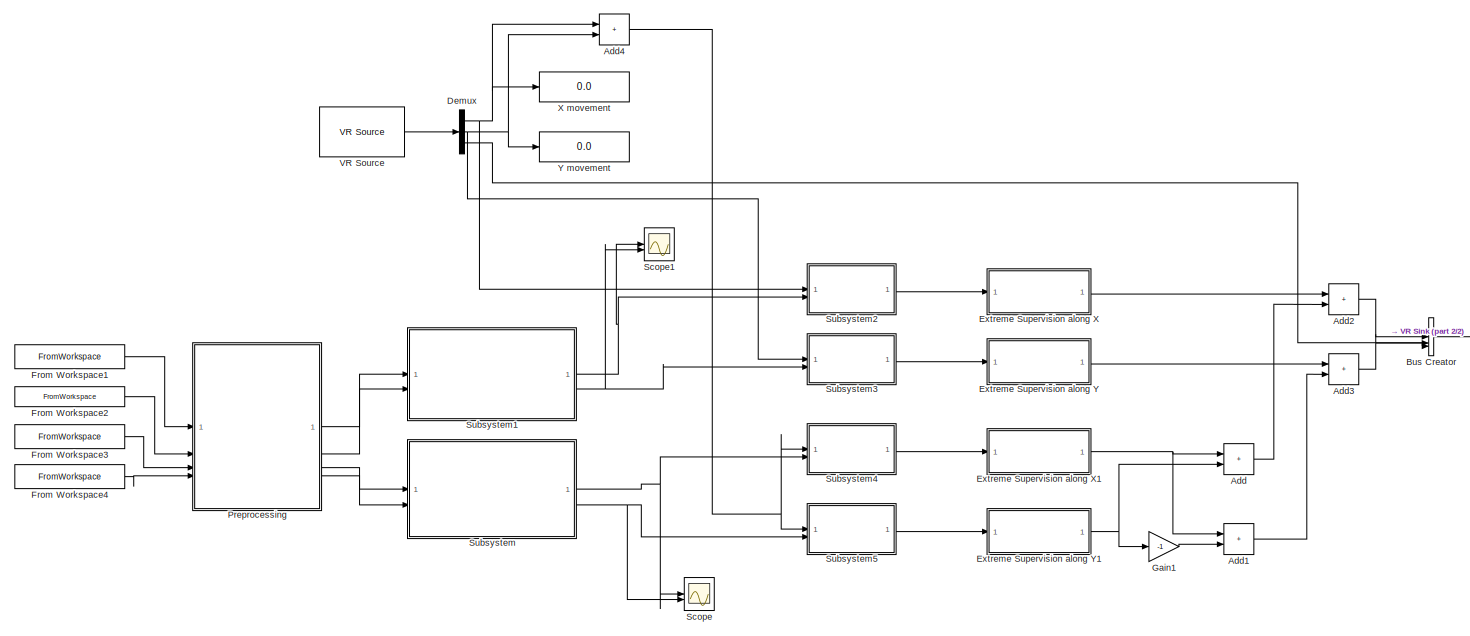
[diagram: root canvas - part 1/2, most of the canvas]
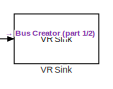
[diagram: root canvas - part 2/2, middle right region]
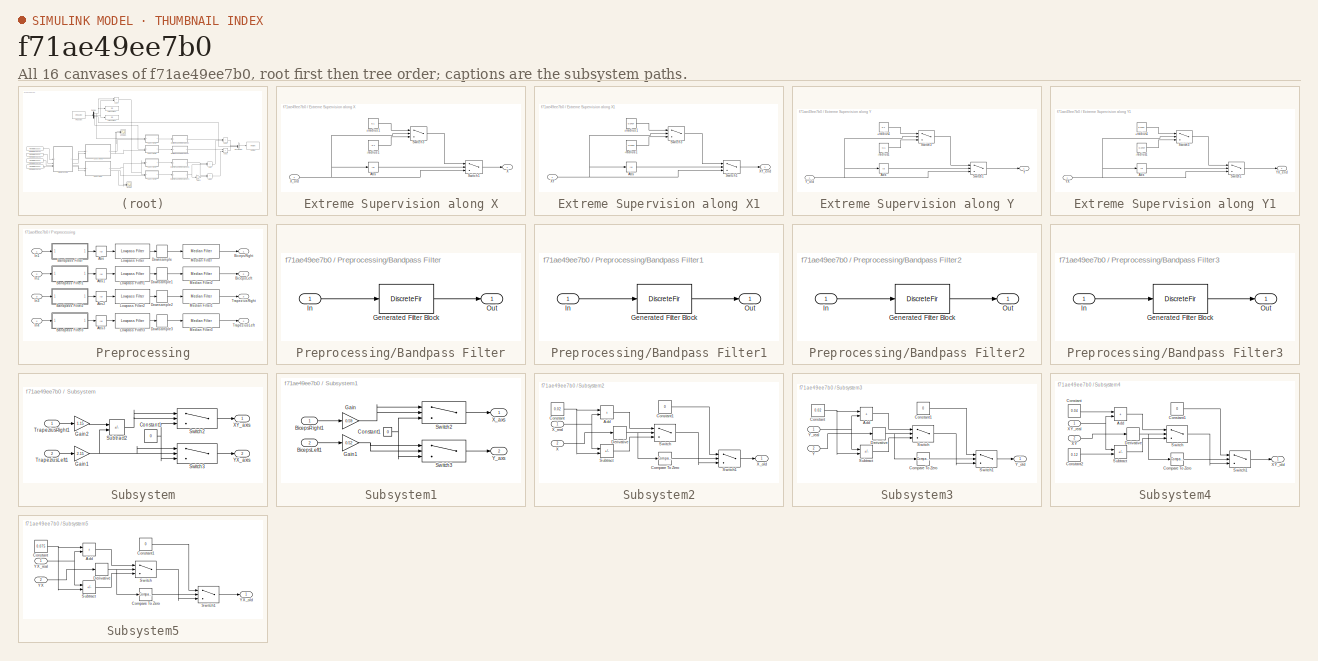
[diagram: thumbnail index - all 16 canvases of the model, root first then tree order]
MODEL slx_f71ae49ee7b0
KIND model
CONFIG AbsTol = auto
CONFIG EnableMultiTasking = off
CONFIG FixedStep = auto
CONFIG MaxStep = auto
CONFIG MinStep = auto
CONFIG RelTol = 1e-3
CONFIG SampleTimeConstraint = Unconstrained
CONFIG SolverName = VariableStepAuto
CONFIG StartTime = 0.0
CONFIG StopTime = 30.0
BLOCK [Sum] Add
  IconShape = rectangular
BLOCK [Sum] Add1
  IconShape = rectangular
BLOCK [Sum] Add2
  IconShape = rectangular
BLOCK [Sum] Add3
  IconShape = rectangular
BLOCK [Sum] Add4
  IconShape = rectangular
BLOCK [BusCreator] Bus Creator
  DisplayOption = bar
  InheritFromInputs = on
  Inputs = 3
BLOCK [Demux] Demux
  Outputs = 3
BLOCK [SubSystem] Extreme Supervision along X
BLOCK [Constant] Extreme Supervision along X/+radius1
  Value = 0.1
BLOCK [Constant] Extreme Supervision along X/-radius1
  Value = -0.1
BLOCK [Abs] Extreme Supervision along X/Abs
  SaturateOnIntegerOverflow = off
BLOCK [Switch] Extreme Supervision along X/Switch1
  Criteria = u2 > Threshold
  InputSameDT = off
  SaturateOnIntegerOverflow = off
  Threshold = 0.1
BLOCK [Switch] Extreme Supervision along X/Switch3
  Criteria = u2 > Threshold
  InputSameDT = off
  SaturateOnIntegerOverflow = off
BLOCK [Outport] Extreme Supervision along X/X
BLOCK [Inport] Extreme Supervision along X/X_old
BLOCK [SubSystem] Extreme Supervision along X1
BLOCK [Constant] Extreme Supervision along X1/+radius1
  Value = 0.0707
BLOCK [Constant] Extreme Supervision along X1/-radius1
  Value = -0.0707
BLOCK [Abs] Extreme Supervision along X1/Abs
  SaturateOnIntegerOverflow = off
BLOCK [Switch] Extreme Supervision along X1/Switch1
  Criteria = u2 > Threshold
  InputSameDT = off
  SaturateOnIntegerOverflow = off
  Threshold = 0.0707
BLOCK [Switch] Extreme Supervision along X1/Switch3
  Criteria = u2 > Threshold
  InputSameDT = off
  SaturateOnIntegerOverflow = off
BLOCK [Inport] Extreme Supervision along X1/XY
BLOCK [Outport] Extreme Supervision along X1/XY_end
BLOCK [SubSystem] Extreme Supervision along Y
BLOCK [Constant] Extreme Supervision along Y/+radius1
  Value = 0.1
BLOCK [Constant] Extreme Supervision along Y/-radius1
  Value = -0.1
BLOCK [Abs] Extreme Supervision along Y/Abs
  SaturateOnIntegerOverflow = off
BLOCK [Switch] Extreme Supervision along Y/Switch1
  Criteria = u2 > Threshold
  InputSameDT = off
  SaturateOnIntegerOverflow = off
  Threshold = 0.1
BLOCK [Switch] Extreme Supervision along Y/Switch3
  Criteria = u2 > Threshold
  InputSameDT = off
  SaturateOnIntegerOverflow = off
BLOCK [Outport] Extreme Supervision along Y/Y
BLOCK [Inport] Extreme Supervision along Y/Y_old
BLOCK [SubSystem] Extreme Supervision along Y1
BLOCK [Constant] Extreme Supervision along Y1/+radius1
  Value = 0.0707
BLOCK [Constant] Extreme Supervision along Y1/-radius1
  Value = -0.0707
BLOCK [Abs] Extreme Supervision along Y1/Abs
  SaturateOnIntegerOverflow = off
BLOCK [Switch] Extreme Supervision along Y1/Switch1
  Criteria = u2 > Threshold
  InputSameDT = off
  SaturateOnIntegerOverflow = off
  Threshold = 0.0707
BLOCK [Switch] Extreme Supervision along Y1/Switch3
  Criteria = u2 > Threshold
  InputSameDT = off
  SaturateOnIntegerOverflow = off
BLOCK [Inport] Extreme Supervision along Y1/YX
BLOCK [Outport] Extreme Supervision along Y1/YX_end
BLOCK [FromWorkspace] From Workspace1
  OutDataTypeStr = double
  SampleTime = 0.001
  VariableName = [ES2_emg.time, ES2_emg.signals(:,1)]
BLOCK [FromWorkspace] From Workspace2
  OutDataTypeStr = double
  SampleTime = 0.001
  VariableName = [ES2_emg.time, ES2_emg.signals(:,2)]
BLOCK [FromWorkspace] From Workspace3
  OutDataTypeStr = double
  SampleTime = 0.001
  VariableName = [ES2_emg.time, ES2_emg.signals(:,3)]
BLOCK [FromWorkspace] From Workspace4
  OutDataTypeStr = double
  SampleTime = 0.001
  VariableName = [ES2_emg.time, ES2_emg.signals(:,4)]
BLOCK [Gain] Gain1
  Gain = -1
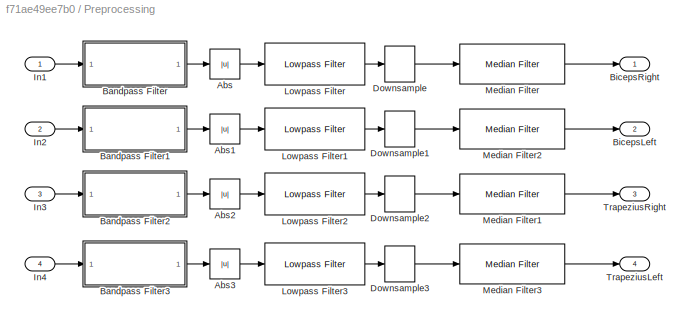
BLOCK [SubSystem] Preprocessing
BLOCK [Abs] Preprocessing/Abs
  SaturateOnIntegerOverflow = off
BLOCK [Abs] Preprocessing/Abs1
  SaturateOnIntegerOverflow = off
BLOCK [Abs] Preprocessing/Abs2
  SaturateOnIntegerOverflow = off
BLOCK [Abs] Preprocessing/Abs3
  SaturateOnIntegerOverflow = off
BLOCK [SubSystem] Preprocessing/Bandpass Filter
  CopyFcn = fdesignblkfcn(gcbh, {'CopyFcn'});
  DialogController = fdesignblkfcn
  InitFcn = fdesignblkfcn(gcbh, {'InitFcn'});
  UserDataPersistent = on
BLOCK [DiscreteFir] Preprocessing/Bandpass Filter/Generated Filter Block
  Coefficients = [8.09984662039171167e-19 6.39138873735445952e-05 -0.000529985360713195602 0.000163049509978640958 -0.00106873656065133355 0.000138454107623771778 -0.00150740219393306354 -0.000146171169312381939 -0.00164491285071874664 -0.000803831165663842096 -0.00127002939103642264 -0.00179475969145176406 -0.000313202715390952153 -0.00280047053638836797 0.00102378750565708626 -0.00320898606072516192 0.0022684712...<+1946ch>  <repeated x4 — deduplicated; at blocks: Generated Filter Block>
  InputPortMap = u0
  InputProcessing = Columns as channels (frame based)
  OutputPortMap = o0
  Tag = BlockMethodSubSystem
BLOCK [Inport] Preprocessing/Bandpass Filter/In
BLOCK [Outport] Preprocessing/Bandpass Filter/Out
  VectorParamsAs1DForOutWhenUnconnected = off
BLOCK [SubSystem] Preprocessing/Bandpass Filter1
  CopyFcn = fdesignblkfcn(gcbh, {'CopyFcn'});
  DialogController = fdesignblkfcn
  InitFcn = fdesignblkfcn(gcbh, {'InitFcn'});
  UserDataPersistent = on
BLOCK [DiscreteFir] Preprocessing/Bandpass Filter1/Generated Filter Block
  InputPortMap = u0
  InputProcessing = Columns as channels (frame based)
  OutputPortMap = o0
  Tag = BlockMethodSubSystem
BLOCK [Inport] Preprocessing/Bandpass Filter1/In
BLOCK [Outport] Preprocessing/Bandpass Filter1/Out
  VectorParamsAs1DForOutWhenUnconnected = off
BLOCK [SubSystem] Preprocessing/Bandpass Filter2
  CopyFcn = fdesignblkfcn(gcbh, {'CopyFcn'});
  DialogController = fdesignblkfcn
  InitFcn = fdesignblkfcn(gcbh, {'InitFcn'});
  UserDataPersistent = on
BLOCK [DiscreteFir] Preprocessing/Bandpass Filter2/Generated Filter Block
  InputPortMap = u0
  InputProcessing = Columns as channels (frame based)
  OutputPortMap = o0
  Tag = BlockMethodSubSystem
BLOCK [Inport] Preprocessing/Bandpass Filter2/In
BLOCK [Outport] Preprocessing/Bandpass Filter2/Out
  VectorParamsAs1DForOutWhenUnconnected = off
BLOCK [SubSystem] Preprocessing/Bandpass Filter3
  CopyFcn = fdesignblkfcn(gcbh, {'CopyFcn'});
  DialogController = fdesignblkfcn
  InitFcn = fdesignblkfcn(gcbh, {'InitFcn'});
  UserDataPersistent = on
BLOCK [DiscreteFir] Preprocessing/Bandpass Filter3/Generated Filter Block
  InputPortMap = u0
  InputProcessing = Columns as channels (frame based)
  OutputPortMap = o0
  Tag = BlockMethodSubSystem
BLOCK [Inport] Preprocessing/Bandpass Filter3/In
BLOCK [Outport] Preprocessing/Bandpass Filter3/Out
  VectorParamsAs1DForOutWhenUnconnected = off
BLOCK [Outport] Preprocessing/BicepsLeft
  Port = 2
BLOCK [Outport] Preprocessing/BicepsRight
BLOCK [DownSample] Preprocessing/Downsample
  InputProcessing = Elements as channels (sample based)
  N = 4
  RateOptions = Allow multirate processing
BLOCK [DownSample] Preprocessing/Downsample1
  InputProcessing = Elements as channels (sample based)
  N = 4
  RateOptions = Allow multirate processing
BLOCK [DownSample] Preprocessing/Downsample2
  InputProcessing = Elements as channels (sample based)
  N = 4
  RateOptions = Allow multirate processing
BLOCK [DownSample] Preprocessing/Downsample3
  InputProcessing = Elements as channels (sample based)
  N = 4
  RateOptions = Allow multirate processing
BLOCK [Inport] Preprocessing/In1
BLOCK [Inport] Preprocessing/In2
  Port = 2
BLOCK [Inport] Preprocessing/In3
  Port = 3
BLOCK [Inport] Preprocessing/In4
  Port = 4
BLOCK [Reference] Preprocessing/Lowpass Filter  REF=dspfdesign/Lowpass Filter
  SourceBlock = dspfdesign/Lowpass Filter
  SourceType = dsp.simulink.LowpassFilter
BLOCK [Reference] Preprocessing/Lowpass Filter1  REF=dspfdesign/Lowpass Filter
  SourceBlock = dspfdesign/Lowpass Filter
  SourceType = dsp.simulink.LowpassFilter
BLOCK [Reference] Preprocessing/Lowpass Filter2  REF=dspfdesign/Lowpass Filter
  SourceBlock = dspfdesign/Lowpass Filter
  SourceType = dsp.simulink.LowpassFilter
BLOCK [Reference] Preprocessing/Lowpass Filter3  REF=dspfdesign/Lowpass Filter
  SourceBlock = dspfdesign/Lowpass Filter
  SourceType = dsp.simulink.LowpassFilter
BLOCK [Reference] Preprocessing/Median Filter  REF=dspstat3/Median
Filter
  LibrarySourceBlock = dspfdesign/Median\nFilter
  SourceBlock = dspstat3/Median\nFilter
  SourceType = dsp.simulink.MedianFilter
BLOCK [Reference] Preprocessing/Median Filter1  REF=dspstat3/Median
Filter
  LibrarySourceBlock = dspfdesign/Median\nFilter
  SourceBlock = dspstat3/Median\nFilter
  SourceType = dsp.simulink.MedianFilter
BLOCK [Reference] Preprocessing/Median Filter2  REF=dspstat3/Median
Filter
  LibrarySourceBlock = dspfdesign/Median\nFilter
  SourceBlock = dspstat3/Median\nFilter
  SourceType = dsp.simulink.MedianFilter
BLOCK [Reference] Preprocessing/Median Filter3  REF=dspstat3/Median
Filter
  LibrarySourceBlock = dspfdesign/Median\nFilter
  SourceBlock = dspstat3/Median\nFilter
  SourceType = dsp.simulink.MedianFilter
BLOCK [Outport] Preprocessing/TrapeziusLeft
  Port = 4
BLOCK [Outport] Preprocessing/TrapeziusRight
  Port = 3
BLOCK [Scope] Scope
  Floating = off
  NumInputPorts = 2
  ScopeSpecificationString = Simulink.scopes.TimeScopeBlockCfg('CurrentConfiguration', extmgr.ConfigurationSet(extmgr.Configuration('Core','General UI',true),extmgr.Configuration('Core','Source UI',true),extmgr.Configuration('Sources','WiredSimulink',true),extmgr.Configuration('Visuals','Time Domain',true,'SerializedDisplays',{struct('MinYLimReal','-0.02128','MaxYLimReal','0.19155','YLabelReal','','MinYLimMag','0.00000','MaxY...<+1647ch>
BLOCK [Scope] Scope1
  Floating = off
  NumInputPorts = 2
  ScopeSpecificationString = Simulink.scopes.TimeScopeBlockCfg('CurrentConfiguration', extmgr.ConfigurationSet(extmgr.Configuration('Core','General UI',true),extmgr.Configuration('Core','Source UI',true),extmgr.Configuration('Sources','WiredSimulink',true,'DataLoggingVariableName','ScopeData1'),extmgr.Configuration('Visuals','Time Domain',true,'SerializedDisplays',{struct('MinYLimReal','-0.01294','MaxYLimReal','0.11648','YLab...<+1415ch>
BLOCK [SubSystem] Subsystem
BLOCK [Constant] Subsystem/Constant1
  Value = 0
BLOCK [Gain] Subsystem/Gain1
  Gain = 2.15
BLOCK [Gain] Subsystem/Gain2
  Gain = 1.15
BLOCK [Sum] Subsystem/Subtract2
  IconShape = rectangular
  Inputs = +-
BLOCK [Switch] Subsystem/Switch2
  Criteria = u2 > Threshold
  InputSameDT = off
  SaturateOnIntegerOverflow = off
  Threshold = 0.05
BLOCK [Switch] Subsystem/Switch3
  Criteria = u2 > Threshold
  InputSameDT = off
  SaturateOnIntegerOverflow = off
  Threshold = 0.037
BLOCK [Inport] Subsystem/TrapeziusLeft1
  Port = 2
BLOCK [Inport] Subsystem/TrapeziusRight1
BLOCK [Outport] Subsystem/XY_axis
BLOCK [Outport] Subsystem/YX_axis
  Port = 2
BLOCK [SubSystem] Subsystem1
BLOCK [Inport] Subsystem1/BicepsLeft1
  Port = 2
BLOCK [Inport] Subsystem1/BicepsRight1
BLOCK [Constant] Subsystem1/Constant1
  Value = 0
BLOCK [Gain] Subsystem1/Gain
  Gain = 0.59
BLOCK [Gain] Subsystem1/Gain1
  Gain = 0.52
BLOCK [Switch] Subsystem1/Switch2
  Criteria = u2 > Threshold
  InputSameDT = off
  SaturateOnIntegerOverflow = off
  Threshold = 0.01
BLOCK [Switch] Subsystem1/Switch3
  Criteria = u2 > Threshold
  InputSameDT = off
  SaturateOnIntegerOverflow = off
  Threshold = 0.01
BLOCK [Outport] Subsystem1/X_axs
BLOCK [Outport] Subsystem1/Y_axs
  Port = 2
BLOCK [SubSystem] Subsystem2
BLOCK [Sum] Subsystem2/Add
  IconShape = rectangular
BLOCK [Reference] Subsystem2/Compare To Zero  REF=simulink/Logic and Bit
Operations/Compare
To Zero
  SourceBlock = simulink/Logic and Bit\nOperations/Compare\nTo Zero
  SourceType = Compare To Zero
BLOCK [Constant] Subsystem2/Constant
  Value = 0.02
BLOCK [Constant] Subsystem2/Constant1
  Value = 0
BLOCK [Derivative] Subsystem2/Derivative
BLOCK [Sum] Subsystem2/Subtract
  IconShape = rectangular
  Inputs = +-
BLOCK [Switch] Subsystem2/Switch
  Criteria = u2 > Threshold
  InputSameDT = off
  SaturateOnIntegerOverflow = off
BLOCK [Switch] Subsystem2/Switch1
  InputSameDT = off
  SaturateOnIntegerOverflow = off
  Threshold = 1
BLOCK [Inport] Subsystem2/X
  Port = 2
BLOCK [Outport] Subsystem2/X_old
BLOCK [Inport] Subsystem2/X_real
BLOCK [SubSystem] Subsystem3
BLOCK [Sum] Subsystem3/Add
  IconShape = rectangular
BLOCK [Reference] Subsystem3/Compare To Zero  REF=simulink/Logic and Bit
Operations/Compare
To Zero
  SourceBlock = simulink/Logic and Bit\nOperations/Compare\nTo Zero
  SourceType = Compare To Zero
BLOCK [Constant] Subsystem3/Constant
  Value = 0.02
BLOCK [Constant] Subsystem3/Constant1
  Value = 0
BLOCK [Derivative] Subsystem3/Derivative
BLOCK [Sum] Subsystem3/Subtract
  IconShape = rectangular
  Inputs = +-
BLOCK [Switch] Subsystem3/Switch
  Criteria = u2 > Threshold
  InputSameDT = off
  SaturateOnIntegerOverflow = off
BLOCK [Switch] Subsystem3/Switch1
  InputSameDT = off
  SaturateOnIntegerOverflow = off
  Threshold = 1
BLOCK [Inport] Subsystem3/Y
  Port = 2
BLOCK [Outport] Subsystem3/Y_old
BLOCK [Inport] Subsystem3/Y_real
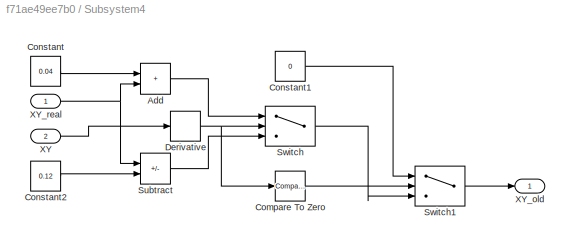
BLOCK [SubSystem] Subsystem4
BLOCK [Sum] Subsystem4/Add
  IconShape = rectangular
BLOCK [Reference] Subsystem4/Compare To Zero  REF=simulink/Logic and Bit
Operations/Compare
To Zero
  SourceBlock = simulink/Logic and Bit\nOperations/Compare\nTo Zero
  SourceType = Compare To Zero
BLOCK [Constant] Subsystem4/Constant
  Value = 0.04
BLOCK [Constant] Subsystem4/Constant1
  Value = 0
BLOCK [Constant] Subsystem4/Constant2
  Value = 0.12
BLOCK [Derivative] Subsystem4/Derivative
BLOCK [Sum] Subsystem4/Subtract
  IconShape = rectangular
  Inputs = +-
BLOCK [Switch] Subsystem4/Switch
  Criteria = u2 > Threshold
  InputSameDT = off
  SaturateOnIntegerOverflow = off
BLOCK [Switch] Subsystem4/Switch1
  InputSameDT = off
  SaturateOnIntegerOverflow = off
  Threshold = 1
BLOCK [Inport] Subsystem4/XY
  Port = 2
BLOCK [Outport] Subsystem4/XY_old
BLOCK [Inport] Subsystem4/XY_real
BLOCK [SubSystem] Subsystem5
BLOCK [Sum] Subsystem5/Add
  IconShape = rectangular
BLOCK [Reference] Subsystem5/Compare To Zero  REF=simulink/Logic and Bit
Operations/Compare
To Zero
  SourceBlock = simulink/Logic and Bit\nOperations/Compare\nTo Zero
  SourceType = Compare To Zero
BLOCK [Constant] Subsystem5/Constant
  Value = 0.075
BLOCK [Constant] Subsystem5/Constant1
  Value = 0
BLOCK [Derivative] Subsystem5/Derivative
BLOCK [Sum] Subsystem5/Subtract
  IconShape = rectangular
  Inputs = +-
BLOCK [Switch] Subsystem5/Switch
  Criteria = u2 > Threshold
  InputSameDT = off
  SaturateOnIntegerOverflow = off
BLOCK [Switch] Subsystem5/Switch1
  InputSameDT = off
  SaturateOnIntegerOverflow = off
  Threshold = 1
BLOCK [Inport] Subsystem5/YX
  Port = 2
BLOCK [Outport] Subsystem5/YX_old
BLOCK [Inport] Subsystem5/YX_real
BLOCK [Reference] VR Sink  REF=vrlib/VR Sink
  InstantiateOnLoad = on
  SourceBlock = vrlib/VR Sink
  SourceType = Virtual Reality Sink
BLOCK [Reference] VR Source  REF=vrlib/VR Source
  InstantiateOnLoad = on
  SourceBlock = vrlib/VR Source
  SourceType = Virtual Reality Source
BLOCK [Display] X movement
  Decimation = 1
BLOCK [Display] Y movement
  Decimation = 1
LINE Add1:1 -> Add3:2
LINE Add2:1 -> Bus Creator:1
LINE Add3:1 -> Bus Creator:2
NET Add4:1 -> Subsystem4:1, Subsystem5:1
LINE Add:1 -> Add2:2
LINE Bus Creator:1 -> VR Sink:1
NET Demux:1 -> Add4:1, Subsystem2:1, X movement:1
NET Demux:2 -> Add4:2, Subsystem3:1, Y movement:1
LINE Demux:3 -> Bus Creator:3
LINE Extreme Supervision along X/+radius1:1 -> Extreme Supervision along X/Switch3:1
LINE Extreme Supervision along X/-radius1:1 -> Extreme Supervision along X/Switch3:3
LINE Extreme Supervision along X/Abs:1 -> Extreme Supervision along X/Switch1:2
LINE Extreme Supervision along X/Switch1:1 -> Extreme Supervision along X/X:1
LINE Extreme Supervision along X/Switch3:1 -> Extreme Supervision along X/Switch1:1
NET Extreme Supervision along X/X_old:1 -> Extreme Supervision along X/Abs:1, Extreme Supervision along X/Switch1:3, Extreme Supervision along X/Switch3:2
LINE Extreme Supervision along X1/+radius1:1 -> Extreme Supervision along X1/Switch3:1
LINE Extreme Supervision along X1/-radius1:1 -> Extreme Supervision along X1/Switch3:3
LINE Extreme Supervision along X1/Abs:1 -> Extreme Supervision along X1/Switch1:2
LINE Extreme Supervision along X1/Switch1:1 -> Extreme Supervision along X1/XY_end:1
LINE Extreme Supervision along X1/Switch3:1 -> Extreme Supervision along X1/Switch1:1
NET Extreme Supervision along X1/XY:1 -> Extreme Supervision along X1/Abs:1, Extreme Supervision along X1/Switch1:3, Extreme Supervision along X1/Switch3:2
NET Extreme Supervision along X1:1 -> Add1:1, Add:1
LINE Extreme Supervision along X:1 -> Add2:1
LINE Extreme Supervision along Y/+radius1:1 -> Extreme Supervision along Y/Switch3:1
LINE Extreme Supervision along Y/-radius1:1 -> Extreme Supervision along Y/Switch3:3
LINE Extreme Supervision along Y/Abs:1 -> Extreme Supervision along Y/Switch1:2
LINE Extreme Supervision along Y/Switch1:1 -> Extreme Supervision along Y/Y:1
LINE Extreme Supervision along Y/Switch3:1 -> Extreme Supervision along Y/Switch1:1
NET Extreme Supervision along Y/Y_old:1 -> Extreme Supervision along Y/Abs:1, Extreme Supervision along Y/Switch1:3, Extreme Supervision along Y/Switch3:2
LINE Extreme Supervision along Y1/+radius1:1 -> Extreme Supervision along Y1/Switch3:1
LINE Extreme Supervision along Y1/-radius1:1 -> Extreme Supervision along Y1/Switch3:3
LINE Extreme Supervision along Y1/Abs:1 -> Extreme Supervision along Y1/Switch1:2
LINE Extreme Supervision along Y1/Switch1:1 -> Extreme Supervision along Y1/YX_end:1
LINE Extreme Supervision along Y1/Switch3:1 -> Extreme Supervision along Y1/Switch1:1
NET Extreme Supervision along Y1/YX:1 -> Extreme Supervision along Y1/Abs:1, Extreme Supervision along Y1/Switch1:3, Extreme Supervision along Y1/Switch3:2
NET Extreme Supervision along Y1:1 -> Add:2, Gain1:1
LINE Extreme Supervision along Y:1 -> Add3:1
LINE From Workspace1:1 -> Preprocessing:1
LINE From Workspace2:1 -> Preprocessing:2
LINE From Workspace3:1 -> Preprocessing:3
LINE From Workspace4:1 -> Preprocessing:4
LINE Gain1:1 -> Add1:2
LINE Preprocessing/Abs1:1 -> Preprocessing/Lowpass Filter1:1
LINE Preprocessing/Abs2:1 -> Preprocessing/Lowpass Filter2:1
LINE Preprocessing/Abs3:1 -> Preprocessing/Lowpass Filter3:1
LINE Preprocessing/Abs:1 -> Preprocessing/Lowpass Filter:1
LINE Preprocessing/Bandpass Filter1:1 -> Preprocessing/Abs1:1
LINE Preprocessing/Bandpass Filter2:1 -> Preprocessing/Abs2:1
LINE Preprocessing/Bandpass Filter3:1 -> Preprocessing/Abs3:1
LINE Preprocessing/Bandpass Filter:1 -> Preprocessing/Abs:1
LINE Preprocessing/Downsample1:1 -> Preprocessing/Median Filter2:1
LINE Preprocessing/Downsample2:1 -> Preprocessing/Median Filter1:1
LINE Preprocessing/Downsample3:1 -> Preprocessing/Median Filter3:1
LINE Preprocessing/Downsample:1 -> Preprocessing/Median Filter:1
LINE Preprocessing/In1:1 -> Preprocessing/Bandpass Filter:1
LINE Preprocessing/In2:1 -> Preprocessing/Bandpass Filter1:1
LINE Preprocessing/In3:1 -> Preprocessing/Bandpass Filter2:1
LINE Preprocessing/In4:1 -> Preprocessing/Bandpass Filter3:1
LINE Preprocessing/Lowpass Filter1:1 -> Preprocessing/Downsample1:1
LINE Preprocessing/Lowpass Filter2:1 -> Preprocessing/Downsample2:1
LINE Preprocessing/Lowpass Filter3:1 -> Preprocessing/Downsample3:1
LINE Preprocessing/Lowpass Filter:1 -> Preprocessing/Downsample:1
LINE Preprocessing/Median Filter1:1 -> Preprocessing/TrapeziusRight:1
LINE Preprocessing/Median Filter2:1 -> Preprocessing/BicepsLeft:1
LINE Preprocessing/Median Filter3:1 -> Preprocessing/TrapeziusLeft:1
LINE Preprocessing/Median Filter:1 -> Preprocessing/BicepsRight:1
LINE Preprocessing:1 -> Subsystem1:1
LINE Preprocessing:2 -> Subsystem1:2
LINE Preprocessing:3 -> Subsystem:1
LINE Preprocessing:4 -> Subsystem:2
NET Subsystem/Constant1:1 -> Subsystem/Switch2:3, Subsystem/Switch3:3
NET Subsystem/Gain1:1 -> Subsystem/Subtract2:2, Subsystem/Switch3:1, Subsystem/Switch3:2
LINE Subsystem/Gain2:1 -> Subsystem/Subtract2:1
NET Subsystem/Subtract2:1 -> Subsystem/Switch2:1, Subsystem/Switch2:2
LINE Subsystem/Switch2:1 -> Subsystem/XY_axis:1
LINE Subsystem/Switch3:1 -> Subsystem/YX_axis:1
LINE Subsystem/TrapeziusLeft1:1 -> Subsystem/Gain1:1
LINE Subsystem/TrapeziusRight1:1 -> Subsystem/Gain2:1
LINE Subsystem1/BicepsLeft1:1 -> Subsystem1/Gain1:1
LINE Subsystem1/BicepsRight1:1 -> Subsystem1/Gain:1
NET Subsystem1/Constant1:1 -> Subsystem1/Switch2:3, Subsystem1/Switch3:3
NET Subsystem1/Gain1:1 -> Subsystem1/Switch3:1, Subsystem1/Switch3:2
NET Subsystem1/Gain:1 -> Subsystem1/Switch2:1, Subsystem1/Switch2:2
LINE Subsystem1/Switch2:1 -> Subsystem1/X_axs:1
LINE Subsystem1/Switch3:1 -> Subsystem1/Y_axs:1
NET Subsystem1:1 -> Scope1:1, Subsystem2:2
NET Subsystem1:2 -> Scope1:2, Subsystem3:2
LINE Subsystem2/Add:1 -> Subsystem2/Switch:1
LINE Subsystem2/Compare To Zero:1 -> Subsystem2/Switch1:2
LINE Subsystem2/Constant1:1 -> Subsystem2/Switch1:1
NET Subsystem2/Constant:1 -> Subsystem2/Add:1, Subsystem2/Subtract:2
NET Subsystem2/Derivative:1 -> Subsystem2/Compare To Zero:1, Subsystem2/Switch:2
LINE Subsystem2/Subtract:1 -> Subsystem2/Switch:3
LINE Subsystem2/Switch1:1 -> Subsystem2/X_old:1
LINE Subsystem2/Switch:1 -> Subsystem2/Switch1:3
LINE Subsystem2/X:1 -> Subsystem2/Derivative:1
NET Subsystem2/X_real:1 -> Subsystem2/Add:2, Subsystem2/Subtract:1
LINE Subsystem2:1 -> Extreme Supervision along X:1
LINE Subsystem3/Add:1 -> Subsystem3/Switch:1
LINE Subsystem3/Compare To Zero:1 -> Subsystem3/Switch1:2
LINE Subsystem3/Constant1:1 -> Subsystem3/Switch1:1
NET Subsystem3/Constant:1 -> Subsystem3/Add:1, Subsystem3/Subtract:2
NET Subsystem3/Derivative:1 -> Subsystem3/Compare To Zero:1, Subsystem3/Switch:2
LINE Subsystem3/Subtract:1 -> Subsystem3/Switch:3
LINE Subsystem3/Switch1:1 -> Subsystem3/Y_old:1
LINE Subsystem3/Switch:1 -> Subsystem3/Switch1:3
LINE Subsystem3/Y:1 -> Subsystem3/Derivative:1
NET Subsystem3/Y_real:1 -> Subsystem3/Add:2, Subsystem3/Subtract:1
LINE Subsystem3:1 -> Extreme Supervision along Y:1
LINE Subsystem4/Add:1 -> Subsystem4/Switch:1
LINE Subsystem4/Compare To Zero:1 -> Subsystem4/Switch1:2
LINE Subsystem4/Constant1:1 -> Subsystem4/Switch1:1
LINE Subsystem4/Constant2:1 -> Subsystem4/Subtract:2
LINE Subsystem4/Constant:1 -> Subsystem4/Add:1
NET Subsystem4/Derivative:1 -> Subsystem4/Compare To Zero:1, Subsystem4/Switch:2
LINE Subsystem4/Subtract:1 -> Subsystem4/Switch:3
LINE Subsystem4/Switch1:1 -> Subsystem4/XY_old:1
LINE Subsystem4/Switch:1 -> Subsystem4/Switch1:3
LINE Subsystem4/XY:1 -> Subsystem4/Derivative:1
NET Subsystem4/XY_real:1 -> Subsystem4/Add:2, Subsystem4/Subtract:1
LINE Subsystem4:1 -> Extreme Supervision along X1:1
LINE Subsystem5/Add:1 -> Subsystem5/Switch:1
LINE Subsystem5/Compare To Zero:1 -> Subsystem5/Switch1:2
LINE Subsystem5/Constant1:1 -> Subsystem5/Switch1:1
NET Subsystem5/Constant:1 -> Subsystem5/Add:1, Subsystem5/Subtract:2
NET Subsystem5/Derivative:1 -> Subsystem5/Compare To Zero:1, Subsystem5/Switch:2
LINE Subsystem5/Subtract:1 -> Subsystem5/Switch:3
LINE Subsystem5/Switch1:1 -> Subsystem5/YX_old:1
LINE Subsystem5/Switch:1 -> Subsystem5/Switch1:3
LINE Subsystem5/YX:1 -> Subsystem5/Derivative:1
NET Subsystem5/YX_real:1 -> Subsystem5/Add:2, Subsystem5/Subtract:1
LINE Subsystem5:1 -> Extreme Supervision along Y1:1
NET Subsystem:1 -> Scope:1, Subsystem4:2
NET Subsystem:2 -> Scope:2, Subsystem5:2
LINE VR Source:1 -> Demux:1
note: NET lines group one-source signal fan-out (src -> all destinations, sorted); 1:1 wires keep LINE
